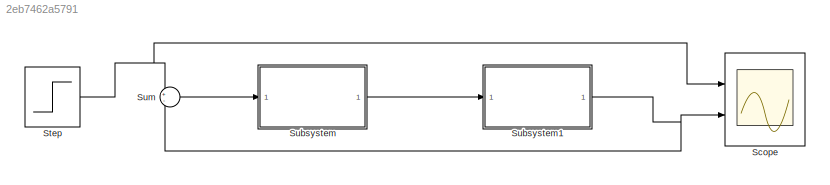
MODEL slx_2eb7462a5791
KIND model
CONFIG AbsTol = auto
CONFIG EnableMultiTasking = off
CONFIG FixedStep = auto
CONFIG MaxStep = auto
CONFIG MinStep = auto
CONFIG RelTol = 1e-3
CONFIG SampleTimeConstraint = Unconstrained
CONFIG SolverName = VariableStepAuto
CONFIG StartTime = 0.0
CONFIG StopTime = 10.0
BLOCK [Scope] Scope
  Floating = off
  NumInputPorts = 2
  Ports = [2]
  ScopeSpecificationString = Simulink.scopes.TimeScopeBlockCfg('CurrentConfiguration', extmgr.ConfigurationSet(extmgr.Configuration('Core','General UI',true),extmgr.Configuration('Core','Source UI',true),extmgr.Configuration('Sources','WiredSimulink',true),extmgr.Configuration('Visuals','Time Domain',true,'SerializedDisplays',{struct('MinYLimReal','-0.125','MaxYLimReal','1.125','YLabelReal','','MinYLimMag','0.00000','MaxYLimM...<+1351ch>
BLOCK [Step] Step
  SampleTime = 0
BLOCK [ModelReference] Subsystem
  ModelNameDialog = Subsystem
  ModelReferenceVersion = 1.3
  Ports = [1, 1]
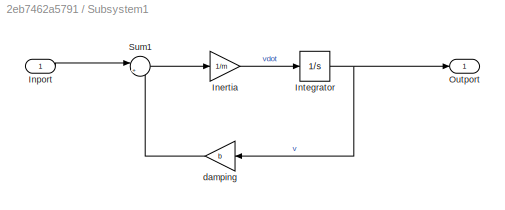
BLOCK [SubSystem] Subsystem1
  Ports = [1, 1]
  RequestExecContextInheritance = off
BLOCK [Gain] Subsystem1/Inertia
  Gain = 1/m
BLOCK [Inport] Subsystem1/Inport
  OutDataTypeStr = double
  PortDimensions = 1
  SampleTime = 0
  SamplingMode = Sample based
  SignalType = real
BLOCK [Integrator] Subsystem1/Integrator
  Ports = [1, 1]
BLOCK [Outport] Subsystem1/Outport
  OutDataTypeStr = double
  PortDimensions = 1
  SampleTime = 0
  SamplingMode = Sample based
  SignalType = real
BLOCK [Sum] Subsystem1/Sum1
  Inputs = |+-
  NameLocation = top
  Ports = [2, 1]
BLOCK [Gain] Subsystem1/damping
  Gain = b
BLOCK [Sum] Sum
  Inputs = +-
  Ports = [2, 1]
NET Step:1 -> Scope:1, Sum:1
LINE Subsystem1/Inertia:1 -> Subsystem1/Integrator:1
LINE Subsystem1/Inport:1 -> Subsystem1/Sum1:1
NET Subsystem1/Integrator:1 -> Subsystem1/Outport:1, Subsystem1/damping:1
LINE Subsystem1/Sum1:1 -> Subsystem1/Inertia:1
LINE Subsystem1/damping:1 -> Subsystem1/Sum1:2
NET Subsystem1:1 -> Scope:2, Sum:2
LINE Subsystem:1 -> Subsystem1:1
LINE Sum:1 -> Subsystem:1
note: NET lines group one-source signal fan-out (src -> all destinations, sorted); 1:1 wires keep LINE
